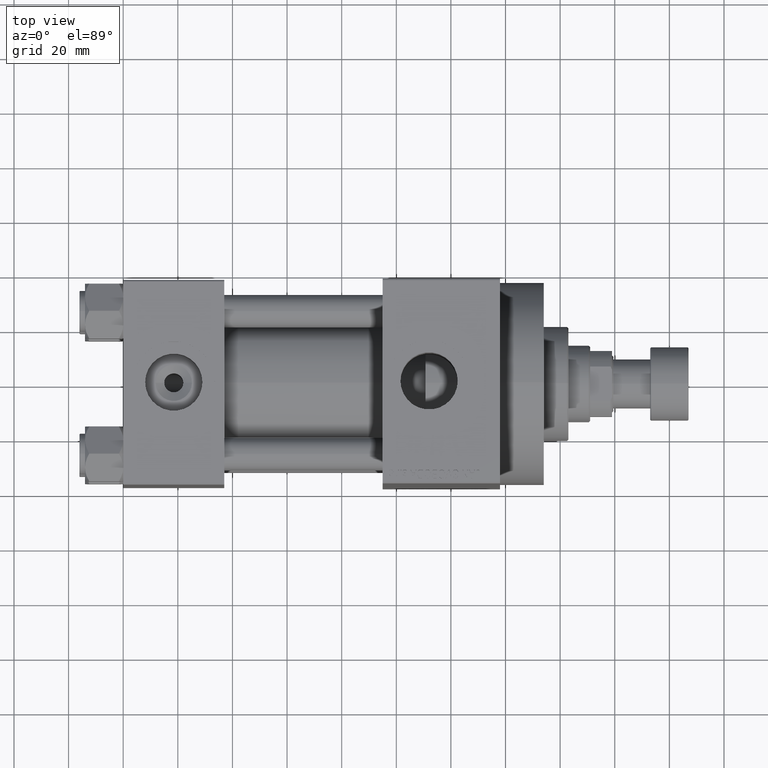
[diagram: clean part render]
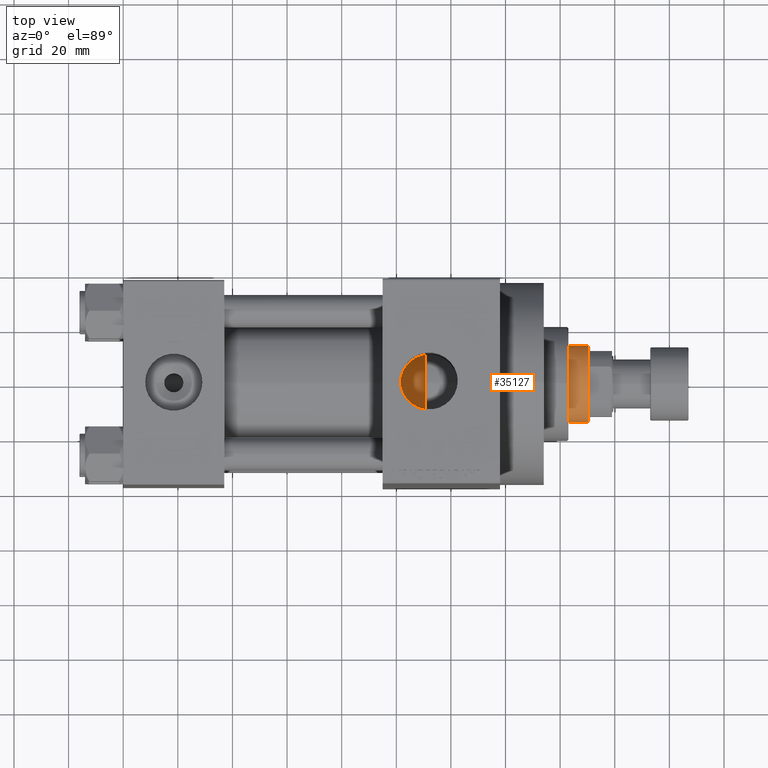
[diagram: same view with one face highlighted and labeled with its STEP entity id]
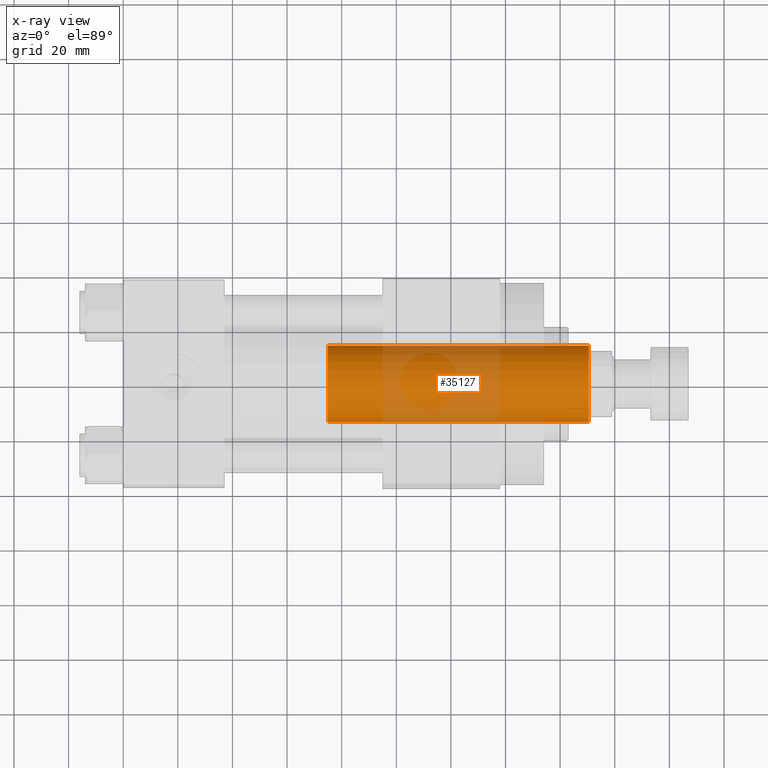
[diagram: x-ray of the same camera — body ghosted, the highlighted face saturated]
A machine part, top view. The second image highlights one B-rep face of the part: STEP entity #35127.
The next image is the same camera in x-ray: the body ghosted, the highlighted face saturated — about 34% of this face is hidden behind the body in this view.
In plain terms, the highlighted cylindrical surface (partial cylindrical patch) has radius 14 mm, axis along (-1, 0, 0).
Its self-contained STEP definition (entity closure, byte-faithful):
#1552 = AXIS2_PLACEMENT_3D ( 'NONE', #30408, #40984, #12330 ) ;
#2122 = CARTESIAN_POINT ( 'NONE',  ( -14.00000000000000000, 0.000000000000000000, 38.00000000000000000 ) ) ;
#3286 = CIRCLE ( 'NONE', #32555, 14.00000000000000000 ) ;
#5289 = CARTESIAN_POINT ( 'NONE',  ( 0.000000000000000000, 0.000000000000000000, 133.5000000000000284 ) ) ;
#5993 = ORIENTED_EDGE ( 'NONE', *, *, #10303, .T. ) ;
#10303 = EDGE_CURVE ( 'NONE', #16735, #34177, #3286, .T. ) ;
#12330 = DIRECTION ( 'NONE',  ( -1.000000000000000000, 0.000000000000000000, 0.000000000000000000 ) ) ;
#12407 = DIRECTION ( 'NONE',  ( 1.000000000000000000, 0.000000000000000000, 0.000000000000000000 ) ) ;
#12898 = LINE ( 'NONE', #17448, #14594 ) ;
#14594 = VECTOR ( 'NONE', #28314, 1000.000000000000000 ) ;
#16735 = VERTEX_POINT ( 'NONE', #2122 ) ;
#17448 = CARTESIAN_POINT ( 'NONE',  ( 14.00000000000000000, 1.714505518806294638E-15, 134.0000000000000000 ) ) ;
#19340 = CARTESIAN_POINT ( 'NONE',  ( -14.00000000000000000, 0.000000000000000000, 134.0000000000000000 ) ) ;
#19985 = DIRECTION ( 'NONE',  ( 1.000000000000000000, 0.000000000000000000, 0.000000000000000000 ) ) ;
#21986 = VECTOR ( 'NONE', #41506, 1000.000000000000000 ) ;
#25670 = CARTESIAN_POINT ( 'NONE',  ( 14.00000000000000000, 1.714505518806294638E-15, 133.5000000000000284 ) ) ;
#25975 = EDGE_LOOP ( 'NONE', ( #30477, #33128, #39254, #5993 ) ) ;
#26173 = EDGE_CURVE ( 'NONE', #31929, #29441, #40639, .T. ) ;
#27534 = LINE ( 'NONE', #19340, #21986 ) ;
#28314 = DIRECTION ( 'NONE',  ( -0.000000000000000000, -0.000000000000000000, -1.000000000000000000 ) ) ;
#29441 = VERTEX_POINT ( 'NONE', #38132 ) ;
#30166 = FACE_OUTER_BOUND ( 'NONE', #25975, .T. ) ;
#30400 = CARTESIAN_POINT ( 'NONE',  ( 14.00000000000000000, 1.714505518806294638E-15, 38.00000000000000000 ) ) ;
#30408 = CARTESIAN_POINT ( 'NONE',  ( 0.000000000000000000, 0.000000000000000000, 134.0000000000000000 ) ) ;
#30477 = ORIENTED_EDGE ( 'NONE', *, *, #33682, .F. ) ;
#31929 = VERTEX_POINT ( 'NONE', #25670 ) ;
#32555 = AXIS2_PLACEMENT_3D ( 'NONE', #39702, #47177, #12407 ) ;
#33128 = ORIENTED_EDGE ( 'NONE', *, *, #26173, .T. ) ;
#33682 = EDGE_CURVE ( 'NONE', #31929, #34177, #12898, .T. ) ;
#33732 = AXIS2_PLACEMENT_3D ( 'NONE', #5289, #34687, #19985 ) ;
#34177 = VERTEX_POINT ( 'NONE', #30400 ) ;
#34687 = DIRECTION ( 'NONE',  ( 0.000000000000000000, 0.000000000000000000, -1.000000000000000000 ) ) ;
#35127 = ADVANCED_FACE ( 'NONE', ( #30166 ), #45102, .T. ) ;
#38132 = CARTESIAN_POINT ( 'NONE',  ( -14.00000000000000000, 0.000000000000000000, 133.5000000000000284 ) ) ;
#39254 = ORIENTED_EDGE ( 'NONE', *, *, #44381, .T. ) ;
#39702 = CARTESIAN_POINT ( 'NONE',  ( 0.000000000000000000, 0.000000000000000000, 38.00000000000000000 ) ) ;
#40639 = CIRCLE ( 'NONE', #33732, 14.00000000000000000 ) ;
#40984 = DIRECTION ( 'NONE',  ( -0.000000000000000000, -0.000000000000000000, -1.000000000000000000 ) ) ;
#41506 = DIRECTION ( 'NONE',  ( -0.000000000000000000, -0.000000000000000000, -1.000000000000000000 ) ) ;
#44381 = EDGE_CURVE ( 'NONE', #29441, #16735, #27534, .T. ) ;
#45102 = CYLINDRICAL_SURFACE ( 'NONE', #1552, 14.00000000000000000 ) ;
#47177 = DIRECTION ( 'NONE',  ( 0.000000000000000000, 0.000000000000000000, 1.000000000000000000 ) ) ;